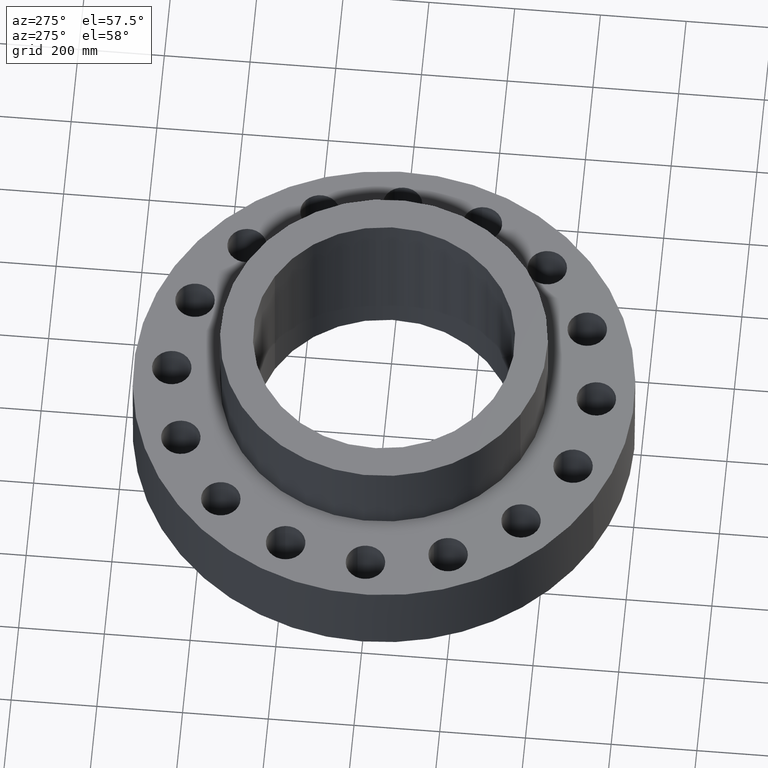
[diagram: clean part render]
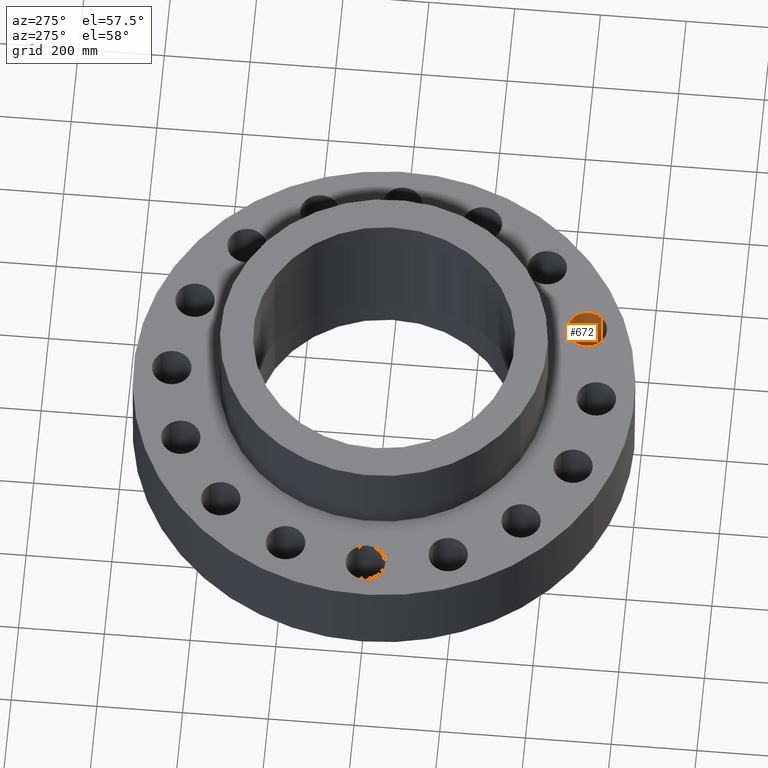
[diagram: same view with one face highlighted and labeled with its STEP entity id]
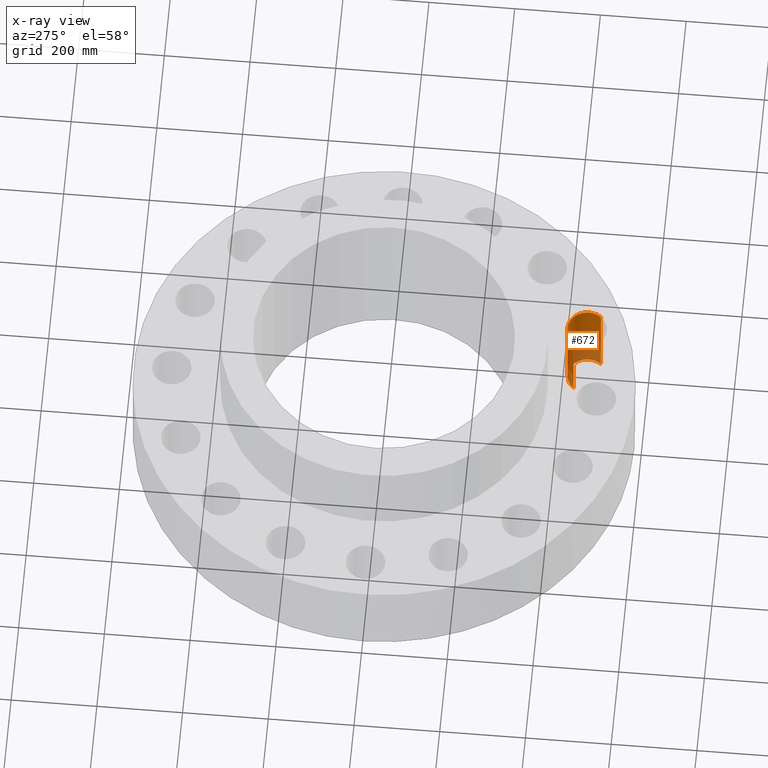
[diagram: x-ray of the same camera — body ghosted, the highlighted face saturated]
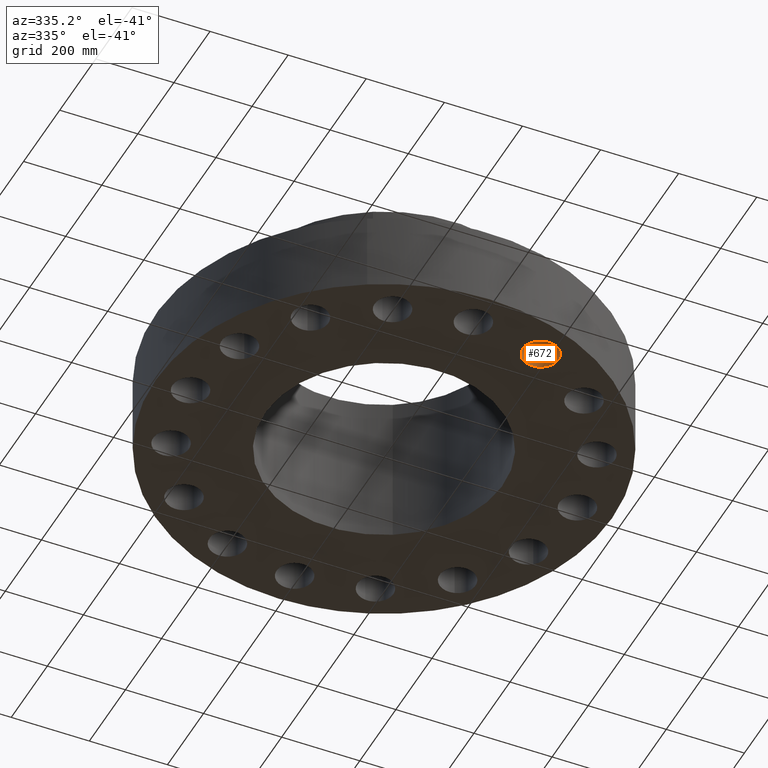
[diagram: same view with one face highlighted and labeled with its STEP entity id]
A machine part, auxiliary view. The second image highlights one B-rep face of the part: STEP entity #672.
The next image is the same camera in x-ray: the body ghosted, the highlighted face saturated — about 26% of this face is hidden behind the body in this view.
A second angle (auxiliary view) of the same face is appended — the face is thin or edge-on in the first view.
In plain terms, the highlighted cylindrical surface (edge-blend (fillet) strip) has radius 45.974 mm, axis along (-0, 0, 1).
Its self-contained STEP definition (entity closure, byte-faithful):
#175=AXIS2_PLACEMENT_3D('Circle Axis2P3D',#173,#174,$) ;
#633=AXIS2_PLACEMENT_3D('Cylinder Axis2P3D',#630,#631,#632) ;
#663=AXIS2_PLACEMENT_3D('Circle Axis2P3D',#661,#662,$) ;
#173=CARTESIAN_POINT('Axis2P3D Location',(7.46232693115,-18.015650884,8.00000000003)) ;
#177=CARTESIAN_POINT('Vertex',(6.05275730464,-16.8802155191,8.00000000003)) ;
#179=CARTESIAN_POINT('Vertex',(8.87189655765,-19.151086249,8.00000000003)) ;
#630=CARTESIAN_POINT('Axis2P3D Location',(7.46232693115,-18.015650884,0.00393700787402)) ;
#635=CARTESIAN_POINT('Line Origine',(6.05275730464,-16.8802155191,4.00000000002)) ;
#639=CARTESIAN_POINT('Vertex',(6.05275730464,-16.8802155191,2.2401153548E-016)) ;
#642=CARTESIAN_POINT('Line Origine',(8.87189655765,-19.151086249,4.00000000002)) ;
#646=CARTESIAN_POINT('Vertex',(8.87189655765,-19.151086249,2.2401153548E-016)) ;
#661=CARTESIAN_POINT('Axis2P3D Location',(7.46232693115,-18.015650884,0.)) ;
#174=DIRECTION('Axis2P3D Direction',(0.,0.,-0.0393700787402)) ;
#631=DIRECTION('Axis2P3D Direction',(-0.,0.,0.0393700787402)) ;
#632=DIRECTION('Axis2P3D XDirection',(0.030660147616,-0.0246973368639,0.)) ;
#636=DIRECTION('Vector Direction',(0.,0.,0.0393700787402)) ;
#643=DIRECTION('Vector Direction',(0.,0.,0.0393700787402)) ;
#662=DIRECTION('Axis2P3D Direction',(-0.,0.,0.0393700787402)) ;
#637=VECTOR('Line Direction',#636,0.0393700787402) ;
#644=VECTOR('Line Direction',#643,0.0393700787402) ;
#667=ORIENTED_EDGE('',*,*,#648,.F.) ;
#668=ORIENTED_EDGE('',*,*,#181,.F.) ;
#669=ORIENTED_EDGE('',*,*,#641,.T.) ;
#670=ORIENTED_EDGE('',*,*,#665,.T.) ;
#672=ADVANCED_FACE('PartBody',(#671),#634,.F.) ;
#176=CIRCLE('generated circle',#175,1.81000000001) ;
#664=CIRCLE('generated circle',#663,1.81000000001) ;
#634=CYLINDRICAL_SURFACE('generated cylinder',#633,1.81000000001) ;
#181=EDGE_CURVE('',#178,#180,#176,.T.) ;
#641=EDGE_CURVE('',#178,#640,#638,.F.) ;
#648=EDGE_CURVE('',#180,#647,#645,.F.) ;
#665=EDGE_CURVE('',#640,#647,#664,.F.) ;
#666=EDGE_LOOP('',(#667,#668,#669,#670)) ;
#671=FACE_OUTER_BOUND('',#666,.T.) ;
#638=LINE('Line',#635,#637) ;
#645=LINE('Line',#642,#644) ;
#178=VERTEX_POINT('',#177) ;
#180=VERTEX_POINT('',#179) ;
#640=VERTEX_POINT('',#639) ;
#647=VERTEX_POINT('',#646) ;